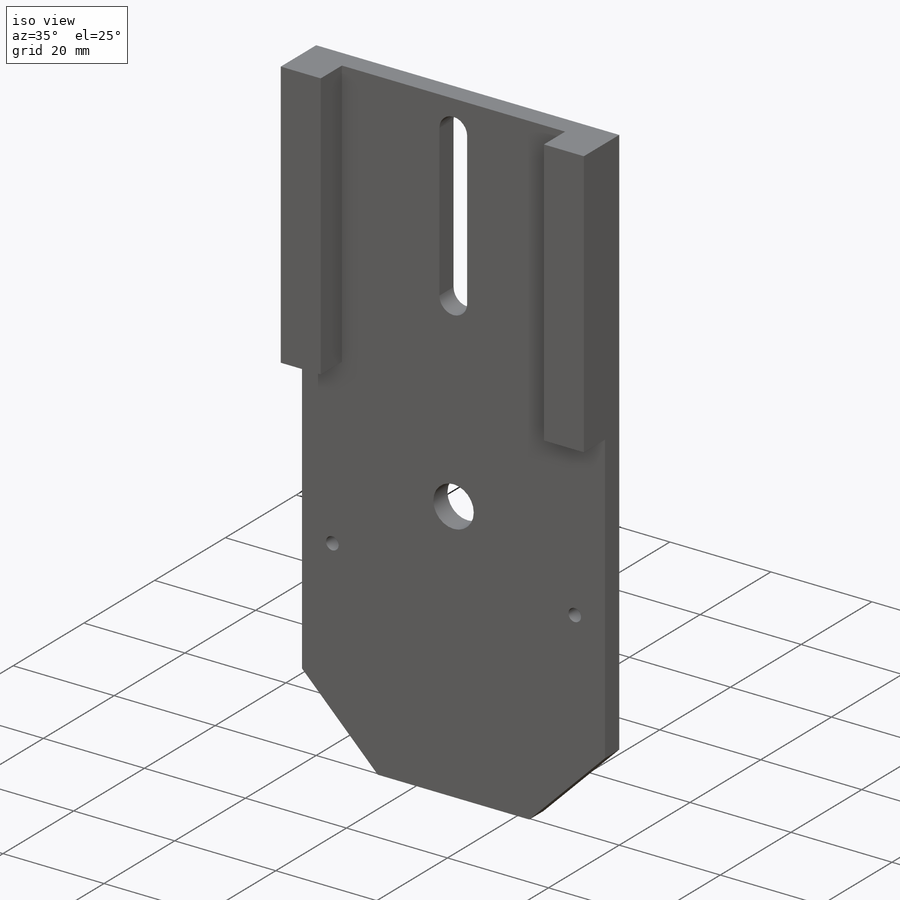
[diagram: iso view]
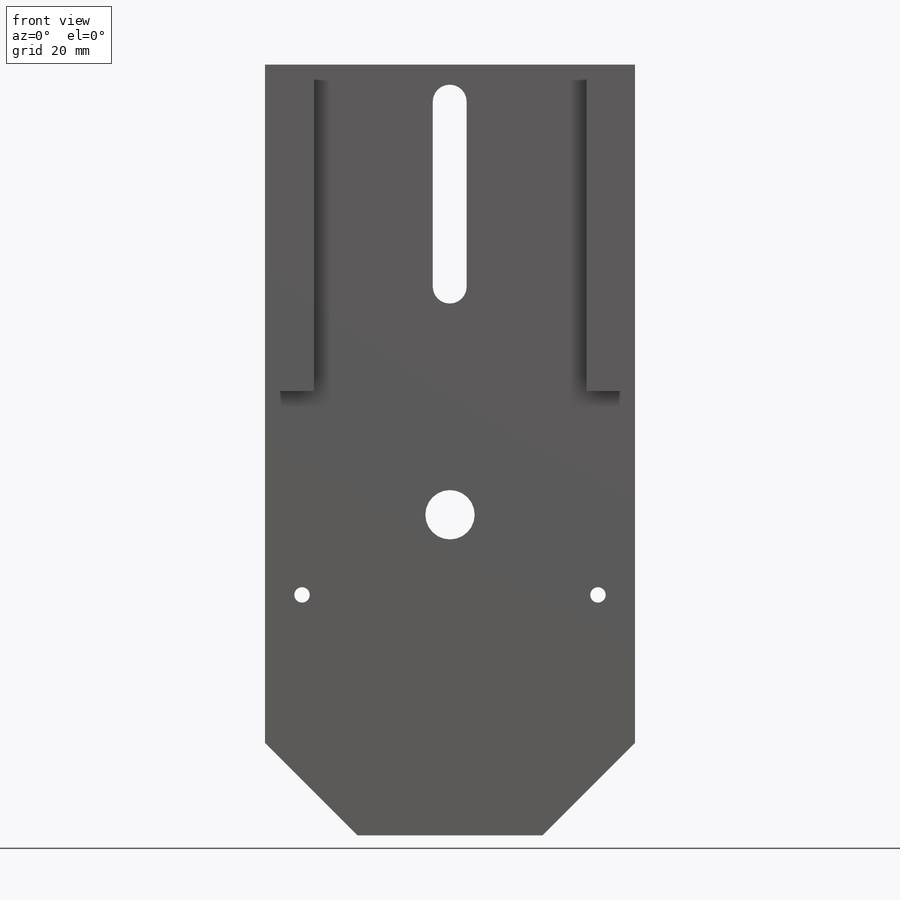
[diagram: front view]
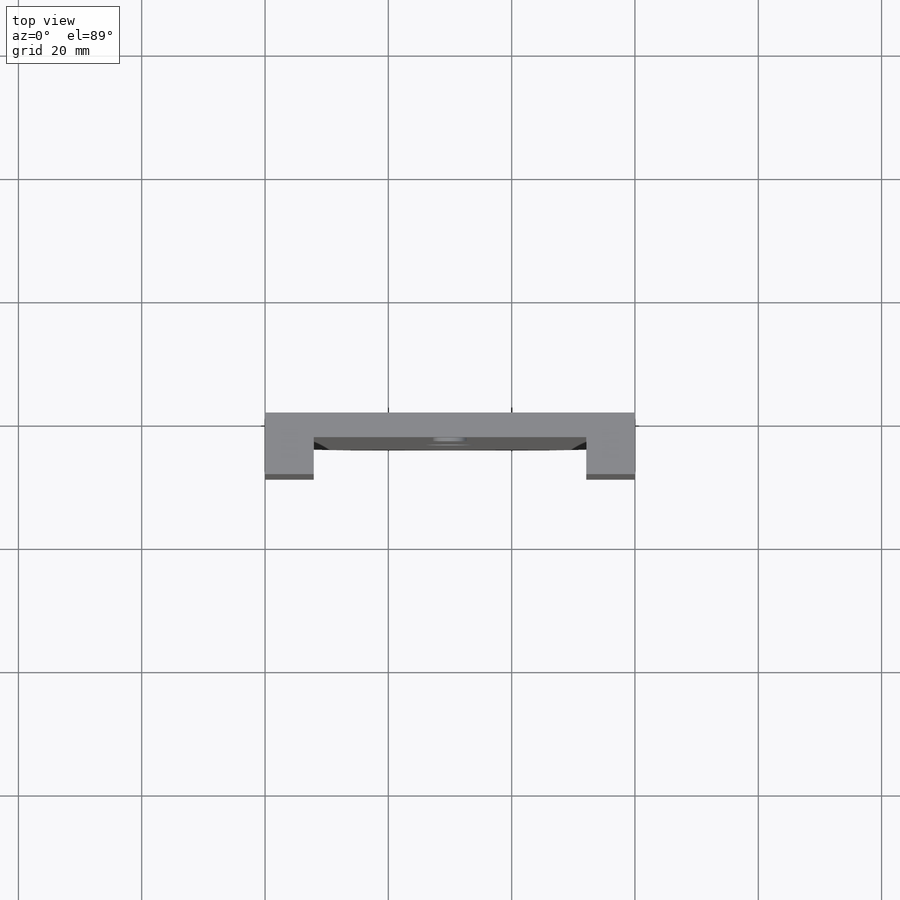
[diagram: top view]
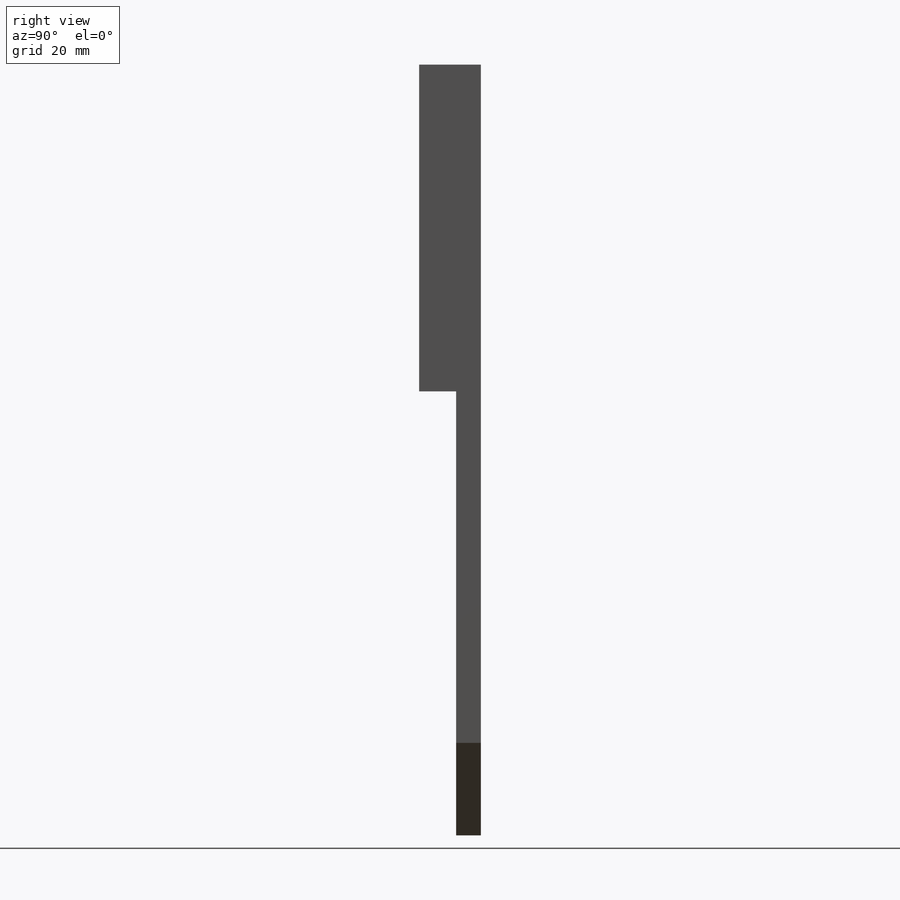
[diagram: right view]
SOLIDWORKS PART (.sldprt)
format: sldprt  version: not decoded by parser v0  size: 246,272 bytes
history: native  units: mm
features: sketch x9, cut_extrude x4, plane x3, hole x2, thread x2, material x1, extrude x1, chamfer x1 (+13 scaffold rows collapsed)
feature tree (36):
  scaffold x13  (default folders/planes/origin — collapsed)
  material  "3.1325 (EN-AW 2017A)"
  plane  "Plan de face"
  plane  "Plan de dessus"
  plane  "Plan de droite"
  sketch  "Esquisse1"  dims[D1=60.0mm D2=125.0mm]
  extrude  "Boss.-Extru.1"  Depth=10mm
  sketch  "Esquisse2"  dims[D1=52.0mm]
  cut_extrude  "Enlèv. mat.-Extru.1"  [1 undecoded]
  sketch  "Esquisse4"  dims[D1=20.0mm D2=6.0mm]
  cut_extrude  "Enlèv. mat.-Extru.2"  [1 undecoded]
  hole  "Trou taraudé M33"  Diameter=2.5mm Depth=4mm
  sketch  "Esquisse10"  dims[c1.D1=8.0mm c1.D2=8.0mm c2.D1=24.0mm c2.D2=13.0mm]
  sketch  "Esquisse9"  dims[hole-wizard template sketch: 60 standard entries collapsed; hole parameters kept: c18.Profondeur du trou pour taraudage jusqu'au prochain=4.0mm]
  thread  "Filetage de perçage3"  Diameter=3mm  [1 undecoded]
  hole  "Trou taraudé M34"  Diameter=2.5mm Depth=4mm
  sketch  "Esquisse12"  dims[c1.D2=8.0mm c1.D1=24.0mm c2.D2=13.0mm]
  sketch  "Esquisse11"  dims[hole-wizard template sketch: 60 standard entries collapsed; hole parameters kept: c18.Profondeur du trou pour taraudage jusqu'au prochain=4.0mm]
  thread  "Filetage de perçage4"  Diameter=3mm  [1 undecoded]
  chamfer  "Chanfrein1"  Distance=15mm Angle=45deg
  sketch  "Esquisse15"  dims[D1=44.2mm D2=7.9mm D3=6.0mm]
  cut_extrude  "Enlèv. mat.-Extru.4"  Depth=55mm
  sketch  "Esquisse16"  dims[D1=6.0mm]
  cut_extrude  "Enlèv. mat.-Extru.5"  [1 undecoded]
decode coverage: 16 of 19 modeling features carry decoded parameters
note: ~ marks probable driven/reference dimensions
note: 5 parameter values undecoded
summary: no parameter record found for 3 features
note: suppression state not decoded; provenance and decode notes live in map.json
